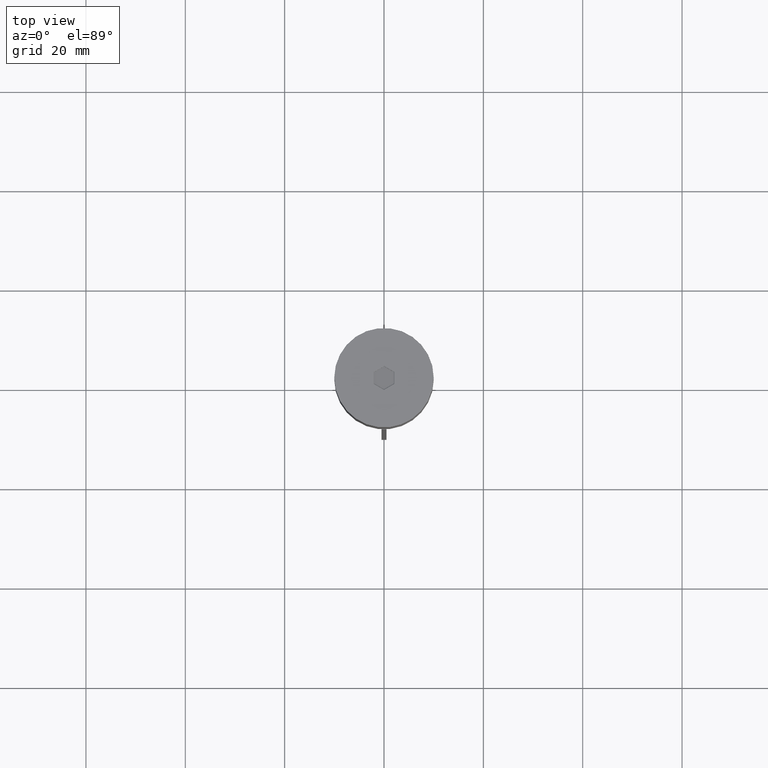
[diagram: clean part render]
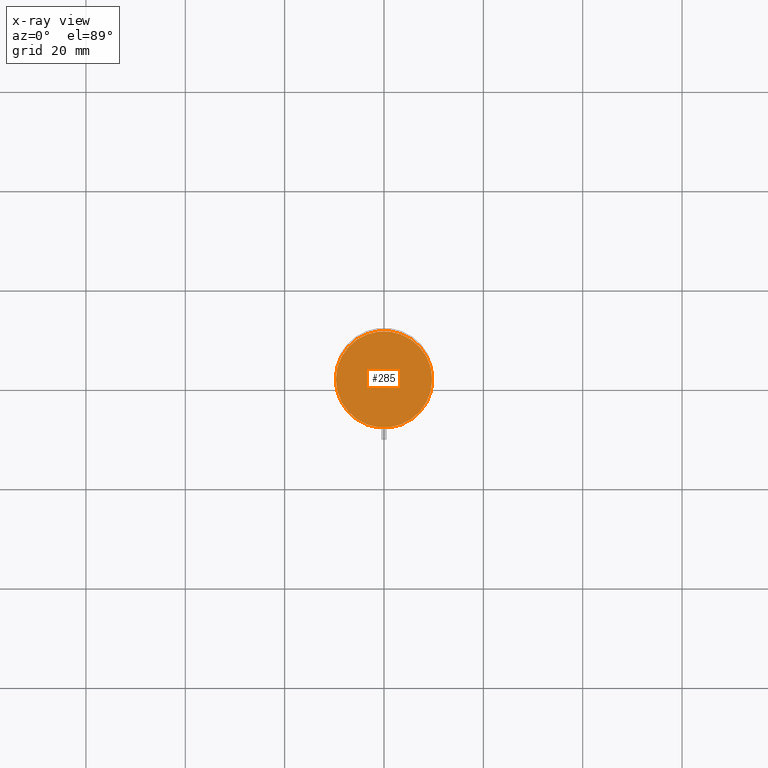
[diagram: x-ray — body ghosted, one internal face saturated and labeled with its STEP entity id]
A machine part, top view, then the same camera in x-ray: the body is ghosted and one INTERNAL B-rep face — a face not visible from any outside direction — is saturated and labeled: STEP entity #285.
In plain terms, the highlighted planar face has unit normal (0, 0, -1).
Its self-contained STEP definition (entity closure, byte-faithful):
#18 = CIRCLE ( 'NONE', #2041, 9.700000000000002842 ) ;
#192 = VERTEX_POINT ( 'NONE', #379 ) ;
#210 = DIRECTION ( 'NONE',  ( -0.000000000000000000, -0.000000000000000000, 1.000000000000000000 ) ) ;
#225 = PLANE ( 'NONE',  #606 ) ;
#226 = DIRECTION ( 'NONE',  ( -1.000000000000000000, 0.000000000000000000, 0.000000000000000000 ) ) ;
#248 = CARTESIAN_POINT ( 'NONE',  ( 9.700000000000002842, 1.206277097160143024E-15, -20.49999999999999645 ) ) ;
#285 = ADVANCED_FACE ( 'NONE', ( #1479 ), #225, .F. ) ;
#379 = CARTESIAN_POINT ( 'NONE',  ( -9.700000000000002842, 0.000000000000000000, -20.49999999999999645 ) ) ;
#416 = DIRECTION ( 'NONE',  ( -0.000000000000000000, -0.000000000000000000, 1.000000000000000000 ) ) ;
#606 = AXIS2_PLACEMENT_3D ( 'NONE', #1796, #1159, #875 ) ;
#614 = CIRCLE ( 'NONE', #1779, 9.700000000000002842 ) ;
#655 = EDGE_CURVE ( 'NONE', #192, #1111, #18, .T. ) ;
#875 = DIRECTION ( 'NONE',  ( -1.000000000000000000, 0.000000000000000000, -0.000000000000000000 ) ) ;
#1062 = DIRECTION ( 'NONE',  ( -1.000000000000000000, 0.000000000000000000, 0.000000000000000000 ) ) ;
#1111 = VERTEX_POINT ( 'NONE', #248 ) ;
#1159 = DIRECTION ( 'NONE',  ( 0.000000000000000000, 0.000000000000000000, -1.000000000000000000 ) ) ;
#1224 = ORIENTED_EDGE ( 'NONE', *, *, #1341, .T. ) ;
#1230 = CARTESIAN_POINT ( 'NONE',  ( 0.000000000000000000, 0.000000000000000000, -20.49999999999999645 ) ) ;
#1340 = CARTESIAN_POINT ( 'NONE',  ( 0.000000000000000000, 0.000000000000000000, -20.49999999999999645 ) ) ;
#1341 = EDGE_CURVE ( 'NONE', #1111, #192, #614, .T. ) ;
#1355 = EDGE_LOOP ( 'NONE', ( #1922, #1224 ) ) ;
#1479 = FACE_OUTER_BOUND ( 'NONE', #1355, .T. ) ;
#1779 = AXIS2_PLACEMENT_3D ( 'NONE', #1230, #416, #1062 ) ;
#1796 = CARTESIAN_POINT ( 'NONE',  ( 0.000000000000000000, 0.000000000000000000, -20.49999999999999645 ) ) ;
#1922 = ORIENTED_EDGE ( 'NONE', *, *, #655, .T. ) ;
#2041 = AXIS2_PLACEMENT_3D ( 'NONE', #1340, #210, #226 ) ;